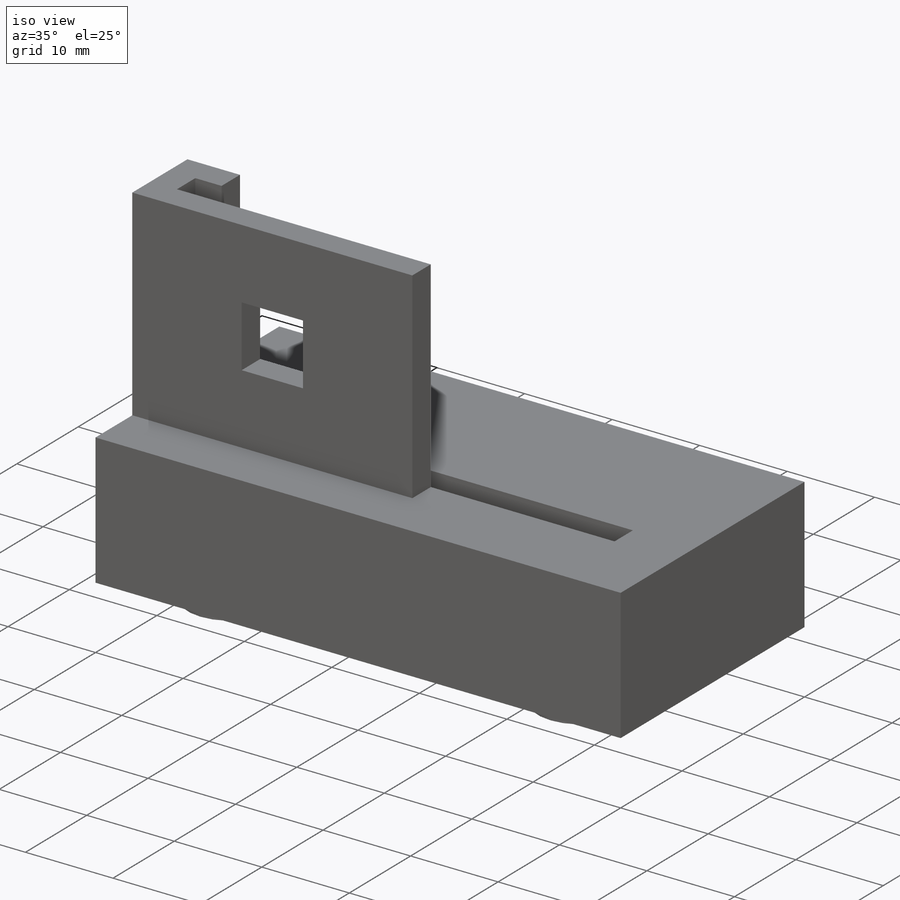
[diagram: iso view]
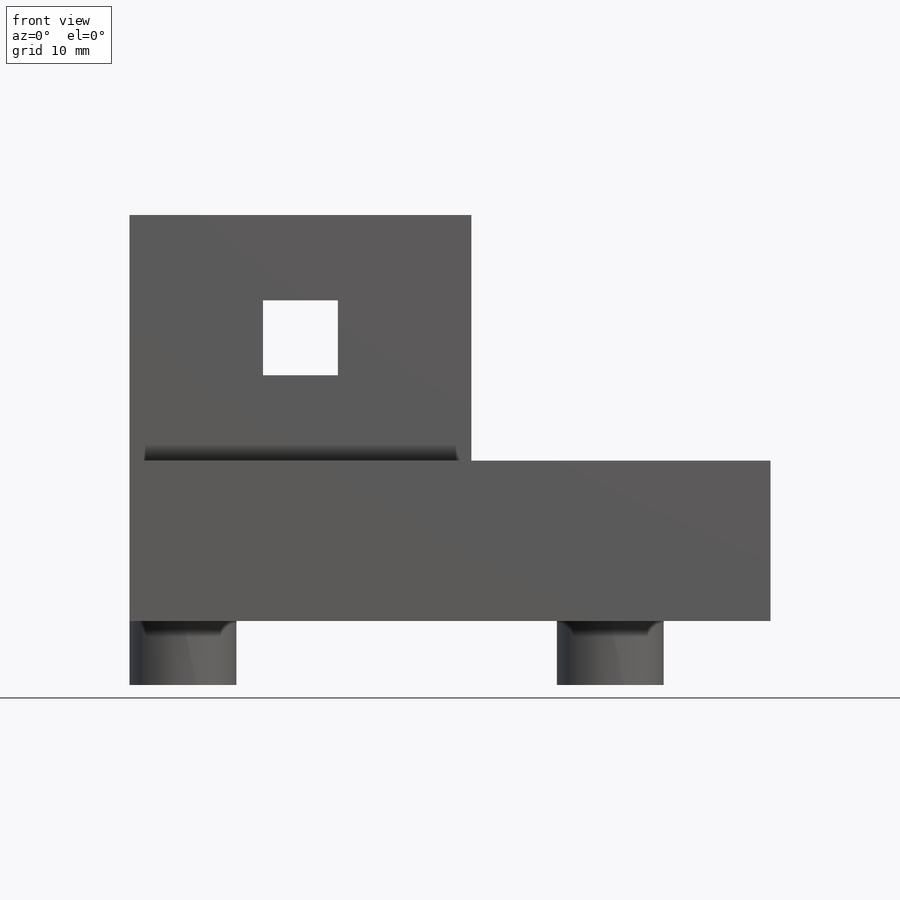
[diagram: front view]
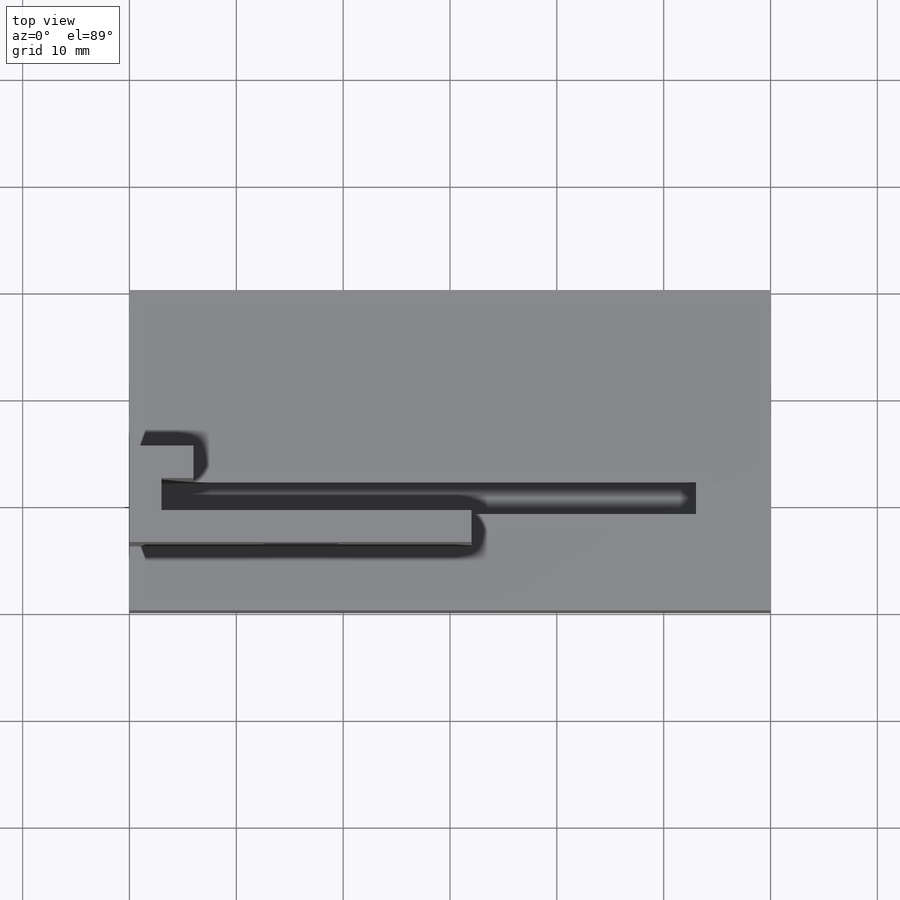
[diagram: top view]
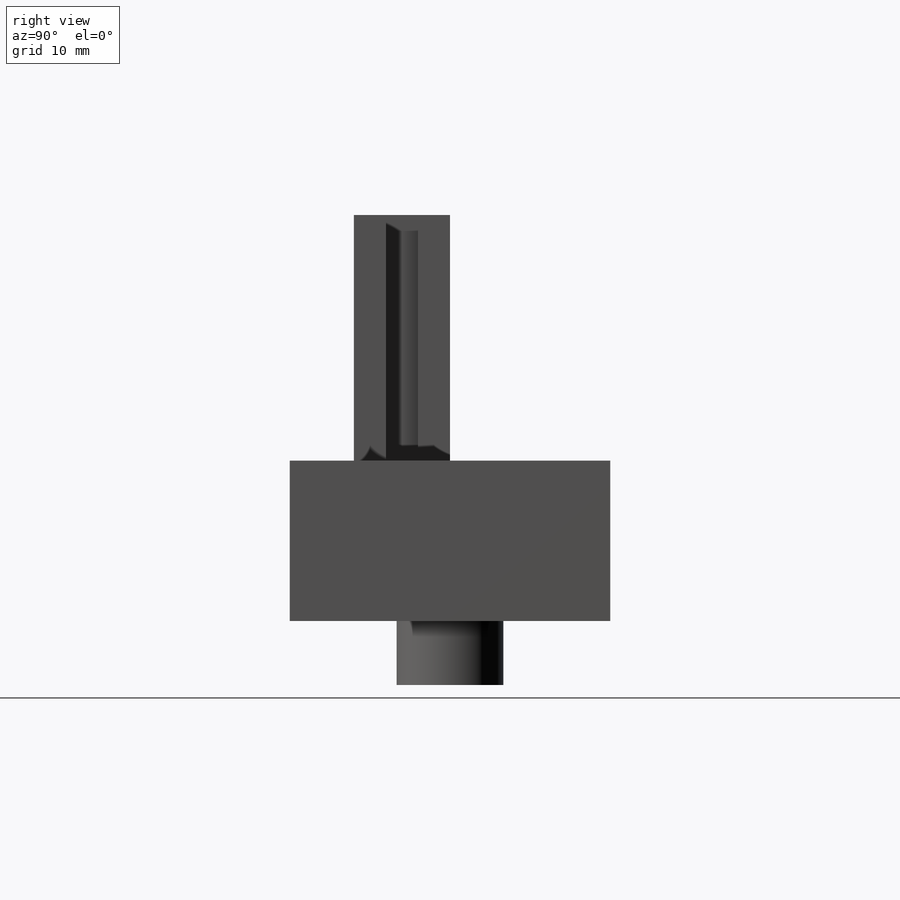
[diagram: right view]
SOLIDWORKS PART (.sldprt)
format: sldprt  version: not decoded by parser v0  size: 201,728 bytes
history: native  units: mm
features: sketch x5, plane x3, extrude x3, cut_extrude x2, material x1 (+10 scaffold rows collapsed)
feature tree (24):
  scaffold x10  (default folders/planes/origin — collapsed)
  material  "Matériau <non spécifié>"
  plane  "Plan de face"
  plane  "Plan de dessus"
  plane  "Plan de droite"
  sketch  "Esquisse5"  dims[D1=30.0mm D2=60.0mm]
  extrude  "Boss.-Extru.2"  Depth=15mm
  sketch  "Esquisse6"  dims[c1.D3=10.0mm c1.D4=10.0mm c2.D3=10.0mm c2.D1=5.0mm c2.D2=40.0mm]
  extrude  "Boss.-Extru.3"  Depth=6mm
  sketch  "Esquisse7"  dims[D1=3.0mm D2=3.0mm D3=3.0mm D4=6.0mm D5=3.0mm D6=32.0mm D7=0.0mm]
  extrude  "Boss.-Extru.4"  Depth=23mm
  sketch  "Esquisse8"  dims[D1=3.0mm D2=50.0mm]
  cut_extrude  "Enlèv. mat.-Extru.1"  Depth=7mm
  sketch  "Esquisse9"  dims[D1=7.0mm D2=7.0mm]
  cut_extrude  "Enlèv. mat.-Extru.2"  Depth=7mm
decode coverage: 10 of 10 modeling features carry decoded parameters
note: suppression state not decoded; provenance and decode notes live in map.json
